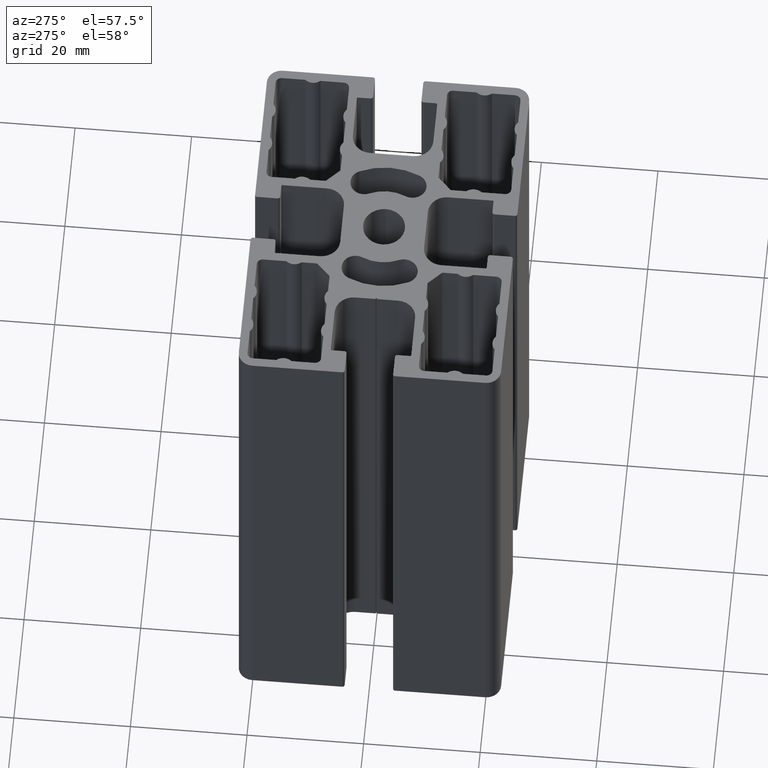
[diagram: clean part render]
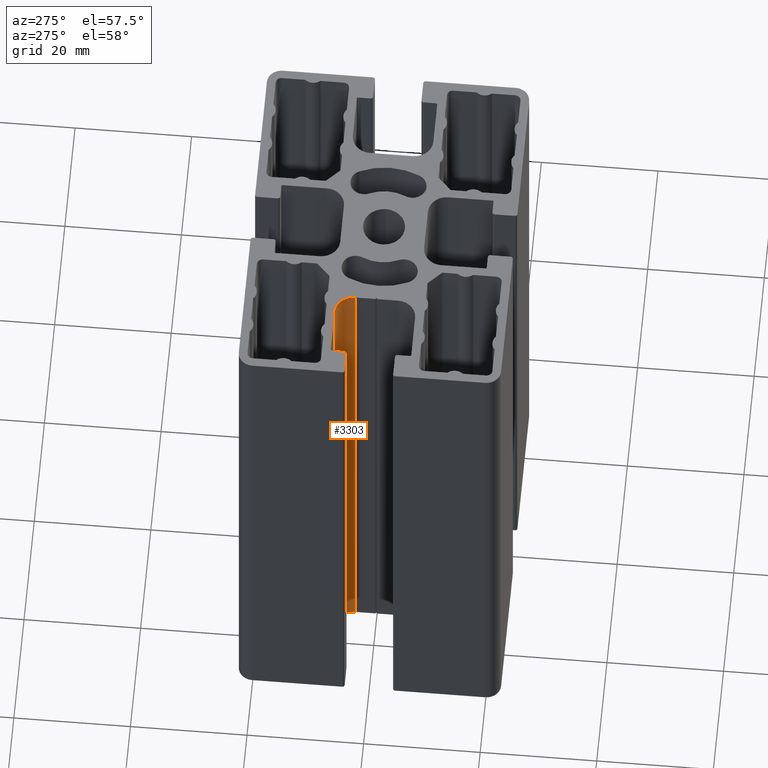
[diagram: same view with one face highlighted and labeled with its STEP entity id]
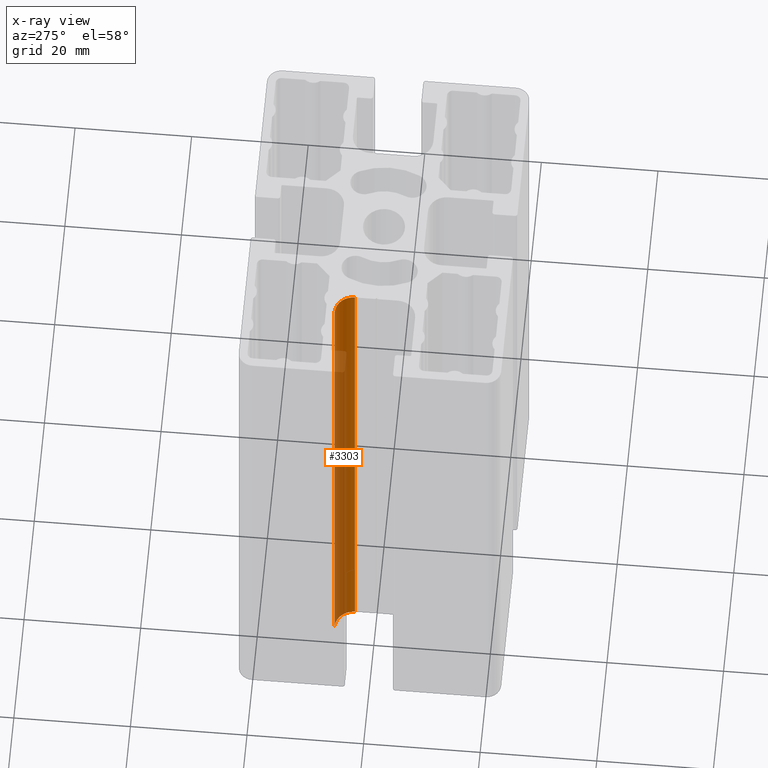
[diagram: x-ray of the same camera — body ghosted, the highlighted face saturated]
A machine part, auxiliary view. The second image highlights one B-rep face of the part: STEP entity #3303.
The next image is the same camera in x-ray: the body ghosted, the highlighted face saturated — about 50% of this face is hidden behind the body in this view.
In plain terms, the highlighted cylindrical surface (edge-blend (fillet) strip) has radius 3.2 mm, axis along (0, 0, 1).
Its self-contained STEP definition (entity closure, byte-faithful):
#254=FACE_OUTER_BOUND('',#421,.T.);
#421=EDGE_LOOP('',(#2655,#2656,#2657,#2658));
#742=LINE('',#5483,#1071);
#743=LINE('',#5489,#1072);
#1071=VECTOR('',#4492,100.);
#1072=VECTOR('',#4499,100.);
#1256=CIRCLE('',#3608,3.19999999673595);
#1257=CIRCLE('',#3609,3.19999999673595);
#1560=VERTEX_POINT('',#5479);
#1561=VERTEX_POINT('',#5481);
#1562=VERTEX_POINT('',#5485);
#1563=VERTEX_POINT('',#5487);
#2026=EDGE_CURVE('',#1560,#1561,#742,.T.);
#2027=EDGE_CURVE('',#1562,#1560,#1256,.T.);
#2028=EDGE_CURVE('',#1563,#1561,#1257,.T.);
#2029=EDGE_CURVE('',#1562,#1563,#743,.T.);
#2655=ORIENTED_EDGE('',*,*,#2027,.T.);
#2656=ORIENTED_EDGE('',*,*,#2026,.T.);
#2657=ORIENTED_EDGE('',*,*,#2028,.F.);
#2658=ORIENTED_EDGE('',*,*,#2029,.F.);
#3151=CYLINDRICAL_SURFACE('',#3607,3.19999999673595);
#3303=ADVANCED_FACE('',(#254),#3151,.F.);
#3607=AXIS2_PLACEMENT_3D('',#5484,#4493,#4494);
#3608=AXIS2_PLACEMENT_3D('',#5486,#4495,#4496);
#3609=AXIS2_PLACEMENT_3D('',#5488,#4497,#4498);
#4492=DIRECTION('',(0.,0.,1.));
#4493=DIRECTION('center_axis',(0.,0.,1.));
#4494=DIRECTION('ref_axis',(-1.,0.,0.));
#4495=DIRECTION('center_axis',(0.,0.,-1.));
#4496=DIRECTION('ref_axis',(-1.,0.,0.));
#4497=DIRECTION('center_axis',(0.,0.,-1.));
#4498=DIRECTION('ref_axis',(-1.,0.,0.));
#4499=DIRECTION('',(0.,0.,1.));
#5479=CARTESIAN_POINT('',(-14.6999999850058,3.69999999622621,0.));
#5481=CARTESIAN_POINT('',(-14.6999999850058,3.69999999622621,100.));
#5483=CARTESIAN_POINT('',(-14.6999999850058,3.69999999622621,0.));
#5484=CARTESIAN_POINT('Origin',(-17.8999999817418,3.69999999622621,0.));
#5485=CARTESIAN_POINT('',(-17.8999999817418,6.89999999296219,0.));
#5486=CARTESIAN_POINT('Origin',(-17.8999999817418,3.69999999622621,0.));
#5487=CARTESIAN_POINT('',(-17.8999999817418,6.89999999296219,100.));
#5488=CARTESIAN_POINT('Origin',(-17.8999999817418,3.69999999622621,100.));
#5489=CARTESIAN_POINT('',(-17.8999999817418,6.89999999296219,0.));